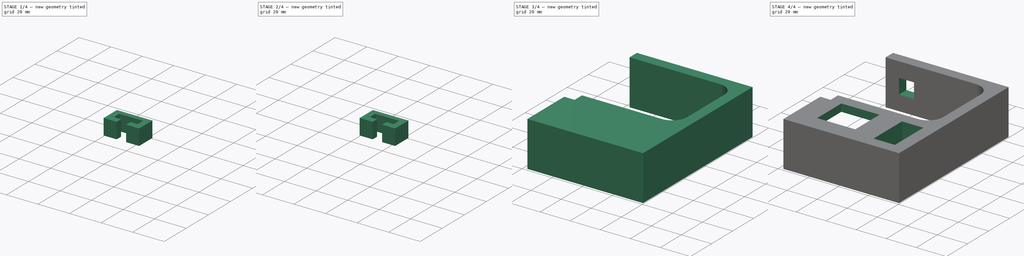
[diagram: build sequence overview — one tinted view per stage of 4, left to right]
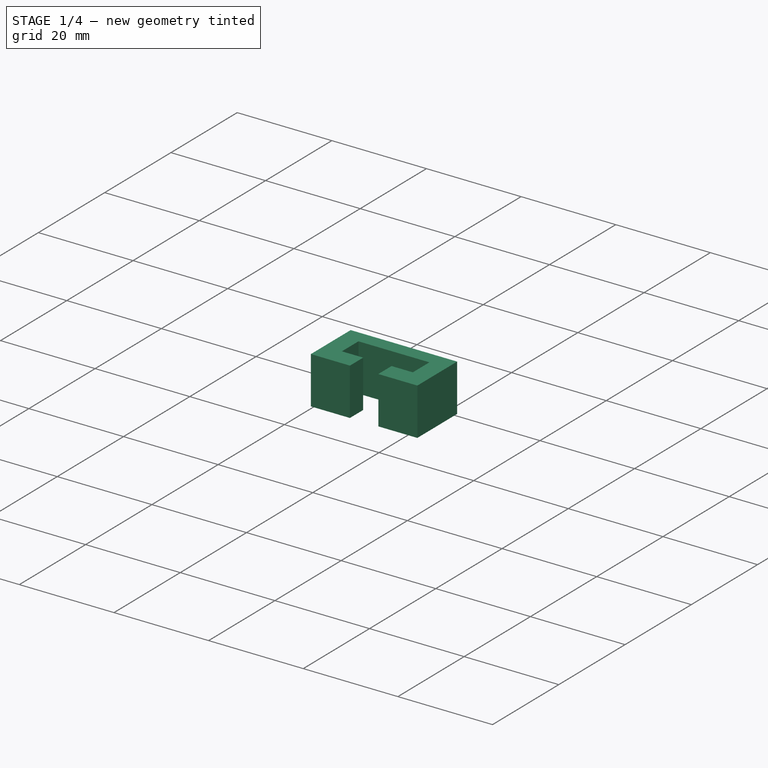
[diagram: stage 1 of 4 — iso view after this stage's code; geometry added in this stage tinted green]
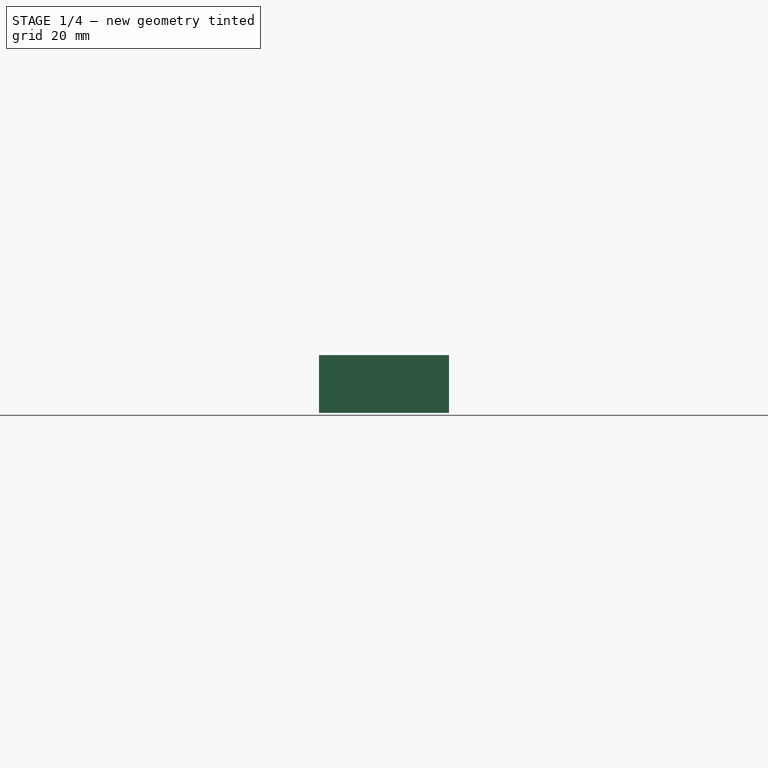
[diagram: stage 1 of 4 — front view after this stage's code; geometry added in this stage tinted green]
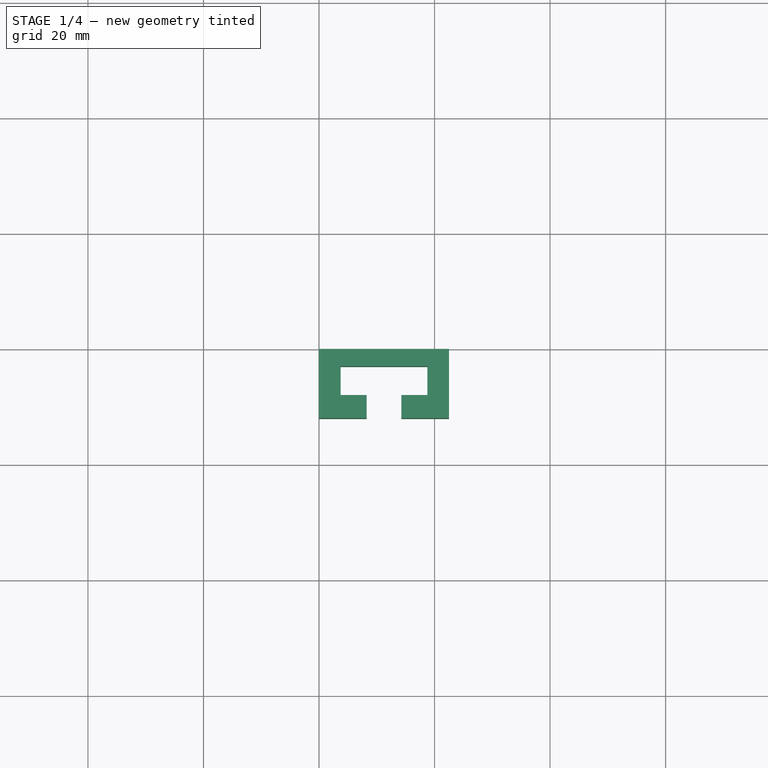
[diagram: stage 1 of 4 — top view after this stage's code; geometry added in this stage tinted green]
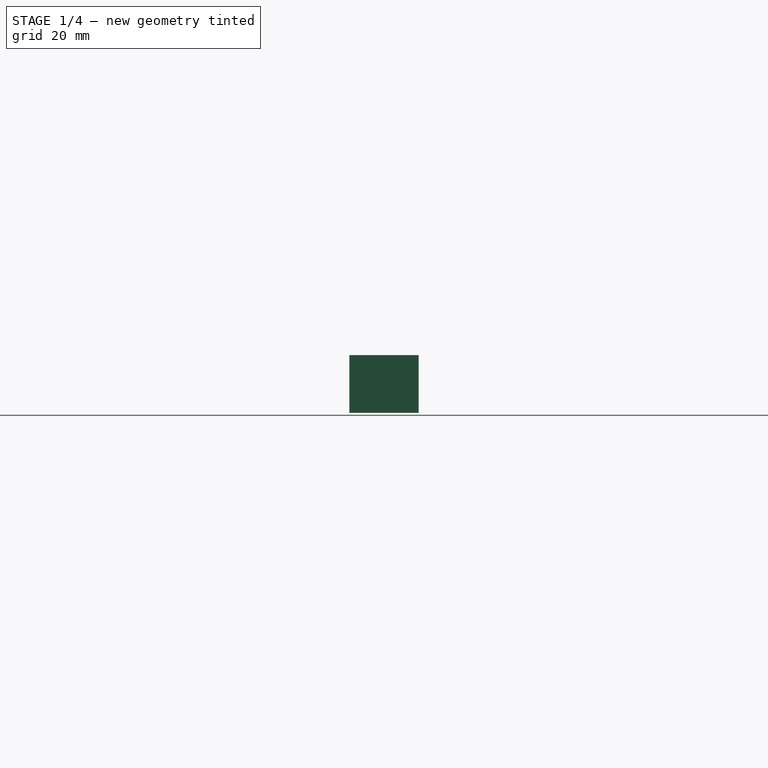
[diagram: stage 1 of 4 — right view after this stage's code; geometry added in this stage tinted green]
FCSTD DOCUMENT  (FreeCAD 0.20R29410 (Git))
Label: hip-female(With Connectors)
License: All rights reserved
LicenseURL: http://en.wikipedia.org/wiki/All_rights_reserved
objects: Sketcher::SketchObject×12, PartDesign::Pad×8, PartDesign::Body×8, PartDesign::Pocket×4
note: 44 computed .brp shape members not serialized (recipe doc carries the construction recipe); baked Part::Feature solids carry a one-line shape summary decoded from their .brp

FEATURE [PartDesign::Body] Body004  label="Female6"
  Group = -> [Sketch008,Pad004]
  Origin = -> Origin004
  Placement = pos=(41.9,-21.5,20) rot=(0,0,1;1.5708rad)
  Tip = -> Pad004
FEATURE [Sketcher::SketchObject] Sketch009
  FullyConstrained = true
  MapMode = 5
  Support = -> [XY_Plane005]
  sketch-geometry (12):
    g0: LineSegment StartX=0 StartY=0 StartZ=0 EndX=22.5 EndY=0 EndZ=0
    g1: LineSegment StartX=22.5 StartY=0 StartZ=0 EndX=22.5 EndY=-12 EndZ=0
    g2: LineSegment StartX=22.5 StartY=-12 StartZ=0 EndX=14.25 EndY=-12 EndZ=0
    g3: LineSegment StartX=14.25 StartY=-12 StartZ=0 EndX=14.25 EndY=-8 EndZ=0
    g4: LineSegment StartX=14.25 StartY=-8 StartZ=0 EndX=18.75 EndY=-8 EndZ=0
    g5: LineSegment StartX=18.75 StartY=-8 StartZ=0 EndX=18.75 EndY=-3 EndZ=0
    g6: LineSegment StartX=18.75 StartY=-3 StartZ=0 EndX=3.75 EndY=-3 EndZ=0
    g7: LineSegment StartX=3.75 StartY=-3 StartZ=0 EndX=3.75 EndY=-8 EndZ=0
    g8: LineSegment StartX=3.75 StartY=-8 StartZ=0 EndX=8.25 EndY=-8 EndZ=0
    g9: LineSegment StartX=8.25 StartY=-8 StartZ=0 EndX=8.25 EndY=-12 EndZ=0
    g10: LineSegment StartX=8.25 StartY=-12 StartZ=0 EndX=0 EndY=-12 EndZ=0
    g11: LineSegment StartX=0 StartY=-12 StartZ=0 EndX=0 EndY=0 EndZ=0
  constraints (35):
    c: Horizontal(g0)
    c: Coincident(g0,g1)
    c: Vertical(g1)
    c: Coincident(g1,g2)
    c: Horizontal(g2)
    c: Coincident(g2,g3)
    c: Vertical(g3)
    c: Coincident(g3,g4)
    c: Horizontal(g4)
    c: Coincident(g4,g5)
    c: Vertical(g5)
    c: Coincident(g5,g6)
    c: Horizontal(g6)
    c: Coincident(g6,g7)
    c: Vertical(g7)
    c: Coincident(g7,g8)
    c: Horizontal(g8)
    c: Coincident(g8,g9)
    c: Vertical(g9)
    c: Coincident(g9,g10)
    c: Horizontal(g10)
    c: Coincident(g10,g11)
    c: Coincident(g11,g0)
    c: Vertical(g11)
    c: DistanceX(g0,g0) = 22.5
    c: Equal(g11,g1)
    c: DistanceX(g6,g6) = 15
    c: DistanceY(g9,g9) = 4
    c: Equal(g3,g9)
    c: Equal(g4,g8)
    c: Equal(g2,g10)
    c: Coincident(g0,g-1)
    c: DistanceY(g5,g0) = 3
    c: DistanceY(g5,g5) = 5
    c: DistanceX(g9,g2) = 6
FEATURE [PartDesign::Pad] Pad005
  Direction = (0,0,1)
  Length = 10
  Length2 = 10
  Profile = -> Sketch009
  ReferenceAxis = -> Sketch009 [N_Axis]
  Type = 0
FEATURE [PartDesign::Body] Body005  label="Female2"
  Group = -> [Sketch009,Pad005]
  Origin = -> Origin005
  Placement = pos=(11.15,-62,20) rot=(0,0,1;0rad)
  Tip = -> Pad005
FEATURE [Sketcher::SketchObject] Sketch010
  FullyConstrained = true
  MapMode = 5
  Support = -> [XY_Plane006]
  sketch-geometry (12):
    g0: LineSegment StartX=0 StartY=0 StartZ=0 EndX=22.5 EndY=0 EndZ=0
    g1: LineSegment StartX=22.5 StartY=0 StartZ=0 EndX=22.5 EndY=-12 EndZ=0
    g2: LineSegment StartX=22.5 StartY=-12 StartZ=0 EndX=14.25 EndY=-12 EndZ=0
    g3: LineSegment StartX=14.25 StartY=-12 StartZ=0 EndX=14.25 EndY=-8 EndZ=0
    g4: LineSegment StartX=14.25 StartY=-8 StartZ=0 EndX=18.75 EndY=-8 EndZ=0
    g5: LineSegment StartX=18.75 StartY=-8 StartZ=0 EndX=18.75 EndY=-3 EndZ=0
    g6: LineSegment StartX=18.75 StartY=-3 StartZ=0 EndX=3.75 EndY=-3 EndZ=0
    g7: LineSegment StartX=3.75 StartY=-3 StartZ=0 EndX=3.75 EndY=-8 EndZ=0
    g8: LineSegment StartX=3.75 StartY=-8 StartZ=0 EndX=8.25 EndY=-8 EndZ=0
    g9: LineSegment StartX=8.25 StartY=-8 StartZ=0 EndX=8.25 EndY=-12 EndZ=0
    g10: LineSegment StartX=8.25 StartY=-12 StartZ=0 EndX=0 EndY=-12 EndZ=0
    g11: LineSegment StartX=0 StartY=-12 StartZ=0 EndX=0 EndY=0 EndZ=0
  constraints (35):
    c: Horizontal(g0)
    c: Coincident(g0,g1)
    c: Vertical(g1)
    c: Coincident(g1,g2)
    c: Horizontal(g2)
    c: Coincident(g2,g3)
    c: Vertical(g3)
    c: Coincident(g3,g4)
    c: Horizontal(g4)
    c: Coincident(g4,g5)
    c: Vertical(g5)
    c: Coincident(g5,g6)
    c: Horizontal(g6)
    c: Coincident(g6,g7)
    c: Vertical(g7)
    c: Coincident(g7,g8)
    c: Horizontal(g8)
    c: Coincident(g8,g9)
    c: Vertical(g9)
    c: Coincident(g9,g10)
    c: Horizontal(g10)
    c: Coincident(g10,g11)
    c: Coincident(g11,g0)
    c: Vertical(g11)
    c: DistanceX(g0,g0) = 22.5
    c: Equal(g11,g1)
    c: DistanceX(g6,g6) = 15
    c: DistanceY(g9,g9) = 4
    c: Equal(g3,g9)
    c: Equal(g4,g8)
    c: Equal(g2,g10)
    c: Coincident(g0,g-1)
    c: DistanceY(g5,g0) = 3
    c: DistanceY(g5,g5) = 5
    c: DistanceX(g9,g2) = 6
FEATURE [PartDesign::Pad] Pad006
  Direction = (0,0,1)
  Length = 10
  Length2 = 10
  Profile = -> Sketch010
  ReferenceAxis = -> Sketch010 [N_Axis]
  Type = 0
FEATURE [PartDesign::Body] Body006  label="Female3"
  Group = -> [Sketch010,Pad006]
  Origin = -> Origin006
  Placement = pos=(4.9,42.02,20) rot=(0,0,1;3.14159rad)
  Tip = -> Pad006
FEATURE [Sketcher::SketchObject] Sketch011
  FullyConstrained = true
  MapMode = 5
  Support = -> [XY_Plane007]
  sketch-geometry (12):
    g0: LineSegment StartX=0 StartY=0 StartZ=0 EndX=22.5 EndY=0 EndZ=0
    g1: LineSegment StartX=22.5 StartY=0 StartZ=0 EndX=22.5 EndY=-12 EndZ=0
    g2: LineSegment StartX=22.5 StartY=-12 StartZ=0 EndX=14.25 EndY=-12 EndZ=0
    g3: LineSegment StartX=14.25 StartY=-12 StartZ=0 EndX=14.25 EndY=-8 EndZ=0
    g4: LineSegment StartX=14.25 StartY=-8 StartZ=0 EndX=18.75 EndY=-8 EndZ=0
    g5: LineSegment StartX=18.75 StartY=-8 StartZ=0 EndX=18.75 EndY=-3 EndZ=0
    g6: LineSegment StartX=18.75 StartY=-3 StartZ=0 EndX=3.75 EndY=-3 EndZ=0
    g7: LineSegment StartX=3.75 StartY=-3 StartZ=0 EndX=3.75 EndY=-8 EndZ=0
    g8: LineSegment StartX=3.75 StartY=-8 StartZ=0 EndX=8.25 EndY=-8 EndZ=0
    g9: LineSegment StartX=8.25 StartY=-8 StartZ=0 EndX=8.25 EndY=-12 EndZ=0
    g10: LineSegment StartX=8.25 StartY=-12 StartZ=0 EndX=0 EndY=-12 EndZ=0
    g11: LineSegment StartX=0 StartY=-12 StartZ=0 EndX=0 EndY=0 EndZ=0
  constraints (35):
    c: Horizontal(g0)
    c: Coincident(g0,g1)
    c: Vertical(g1)
    c: Coincident(g1,g2)
    c: Horizontal(g2)
    c: Coincident(g2,g3)
    c: Vertical(g3)
    c: Coincident(g3,g4)
    c: Horizontal(g4)
    c: Coincident(g4,g5)
    c: Vertical(g5)
    c: Coincident(g5,g6)
    c: Horizontal(g6)
    c: Coincident(g6,g7)
    c: Vertical(g7)
    c: Coincident(g7,g8)
    c: Horizontal(g8)
    c: Coincident(g8,g9)
    c: Vertical(g9)
    c: Coincident(g9,g10)
    c: Horizontal(g10)
    c: Coincident(g10,g11)
    c: Coincident(g11,g0)
    c: Vertical(g11)
    c: DistanceX(g0,g0) = 22.5
    c: Equal(g11,g1)
    c: DistanceX(g6,g6) = 15
    c: DistanceY(g9,g9) = 4
    c: Equal(g3,g9)
    c: Equal(g4,g8)
    c: Equal(g2,g10)
    c: Coincident(g0,g-1)
    c: DistanceY(g5,g0) = 3
    c: DistanceY(g5,g5) = 5
    c: DistanceX(g9,g2) = 6
FEATURE [PartDesign::Pad] Pad007
  Direction = (0,0,1)
  Length = 10
  Length2 = 10
  Profile = -> Sketch011
  ReferenceAxis = -> Sketch011 [N_Axis]
  Type = 0
FEATURE [PartDesign::Body] Body007  label="Female4"
  Group = -> [Sketch011,Pad007]
  Origin = -> Origin007
  Placement = pos=(34.15,42.02,20) rot=(0,0,1;3.14159rad)
  Tip = -> Pad007
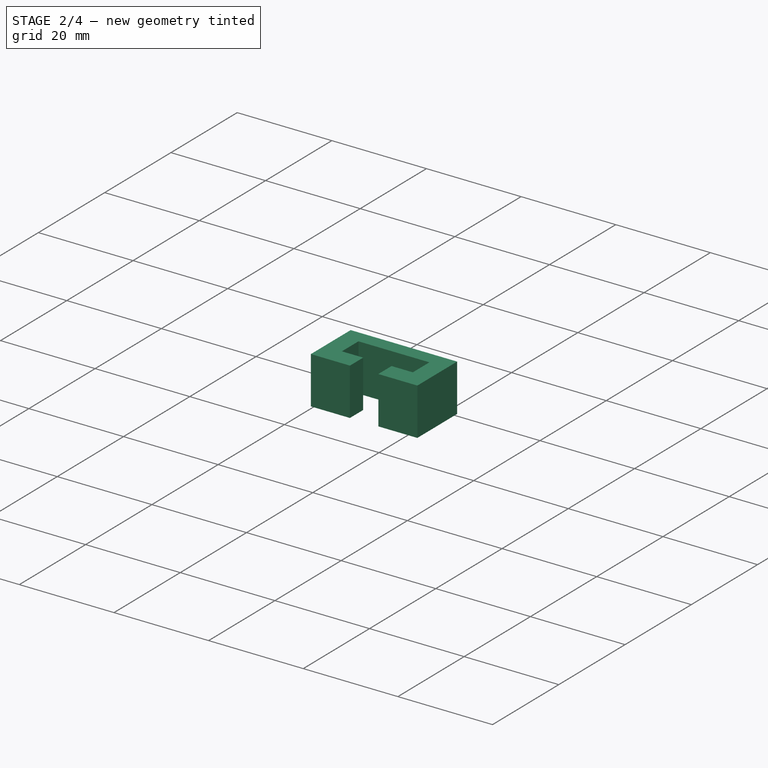
[diagram: stage 2 of 4 — iso view after this stage's code; geometry added in this stage tinted green]
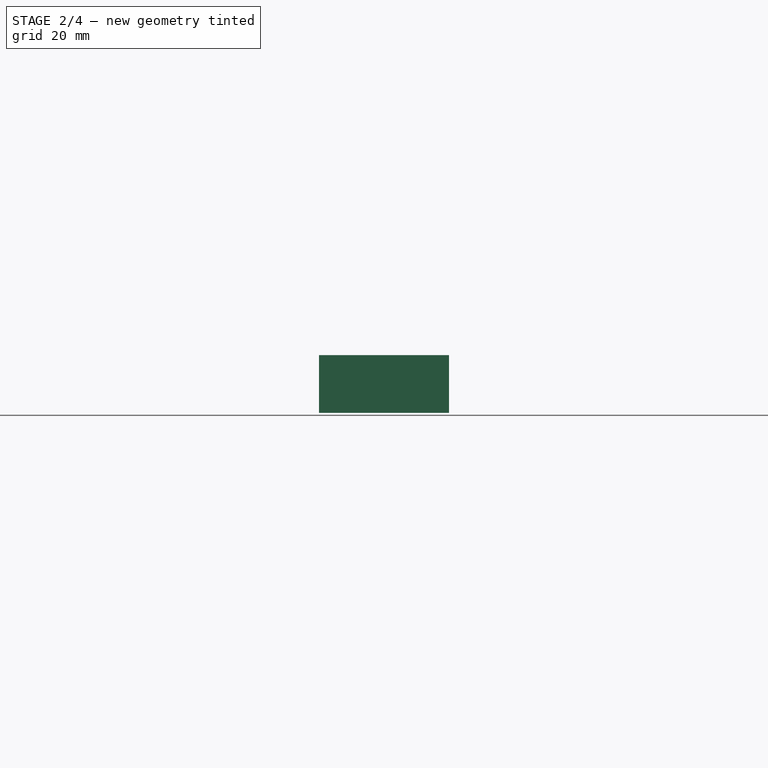
[diagram: stage 2 of 4 — front view after this stage's code; geometry added in this stage tinted green]
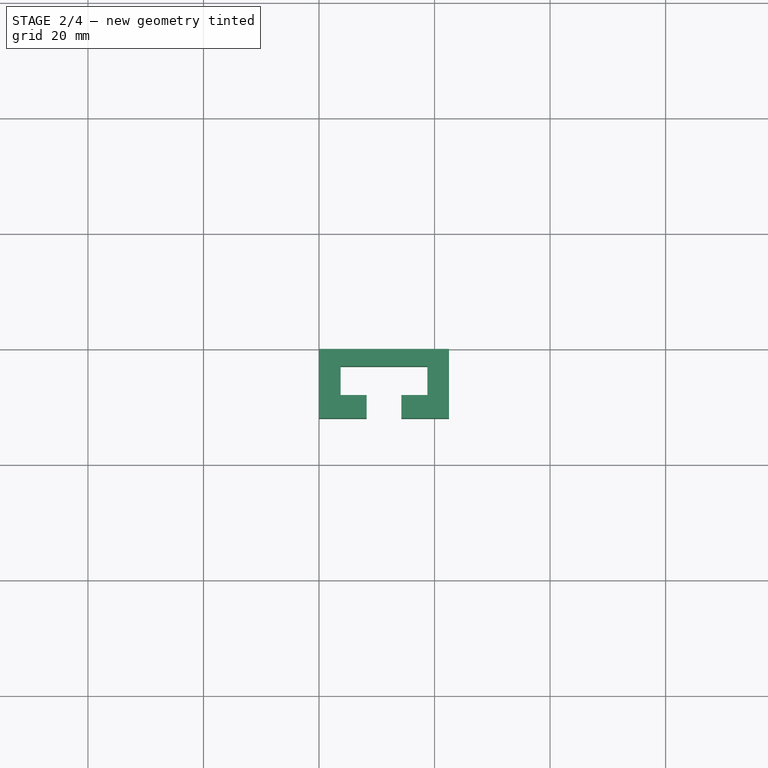
[diagram: stage 2 of 4 — top view after this stage's code; geometry added in this stage tinted green]
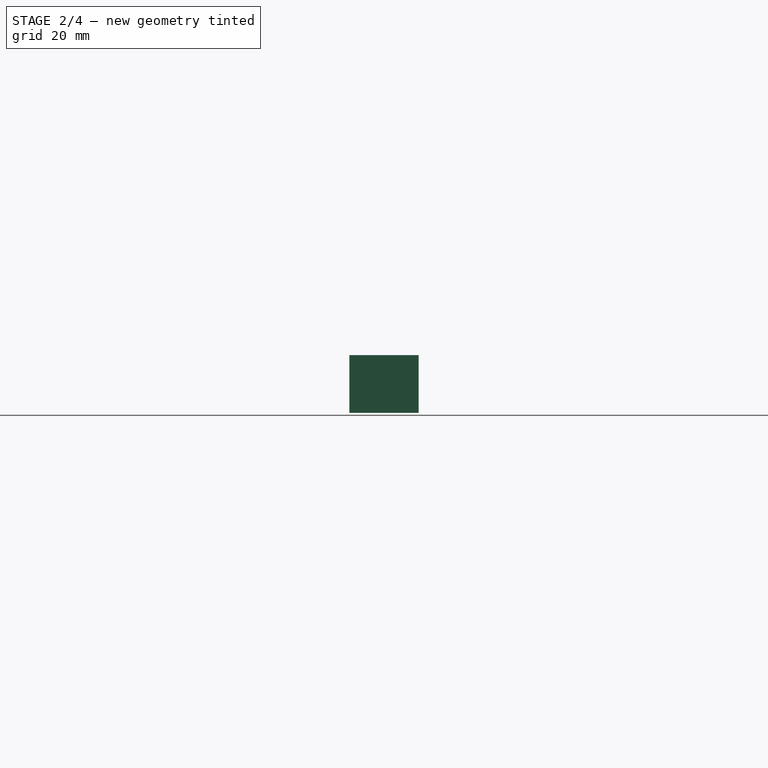
[diagram: stage 2 of 4 — right view after this stage's code; geometry added in this stage tinted green]
FEATURE [PartDesign::Body] Body001  label="Female7"
  Group = -> [Sketch005,Pad001]
  Origin = -> Origin001
  Placement = pos=(41.9,8.5,20) rot=(0,0,1;1.5708rad)
  Tip = -> Pad001
FEATURE [Sketcher::SketchObject] Sketch006
  FullyConstrained = true
  MapMode = 5
  Support = -> [XY_Plane002]
  sketch-geometry (12):
    g0: LineSegment StartX=0 StartY=0 StartZ=0 EndX=22.5 EndY=0 EndZ=0
    g1: LineSegment StartX=22.5 StartY=0 StartZ=0 EndX=22.5 EndY=-12 EndZ=0
    g2: LineSegment StartX=22.5 StartY=-12 StartZ=0 EndX=14.25 EndY=-12 EndZ=0
    g3: LineSegment StartX=14.25 StartY=-12 StartZ=0 EndX=14.25 EndY=-8 EndZ=0
    g4: LineSegment StartX=14.25 StartY=-8 StartZ=0 EndX=18.75 EndY=-8 EndZ=0
    g5: LineSegment StartX=18.75 StartY=-8 StartZ=0 EndX=18.75 EndY=-3 EndZ=0
    g6: LineSegment StartX=18.75 StartY=-3 StartZ=0 EndX=3.75 EndY=-3 EndZ=0
    g7: LineSegment StartX=3.75 StartY=-3 StartZ=0 EndX=3.75 EndY=-8 EndZ=0
    g8: LineSegment StartX=3.75 StartY=-8 StartZ=0 EndX=8.25 EndY=-8 EndZ=0
    g9: LineSegment StartX=8.25 StartY=-8 StartZ=0 EndX=8.25 EndY=-12 EndZ=0
    g10: LineSegment StartX=8.25 StartY=-12 StartZ=0 EndX=0 EndY=-12 EndZ=0
    g11: LineSegment StartX=0 StartY=-12 StartZ=0 EndX=0 EndY=0 EndZ=0
  constraints (35):
    c: Horizontal(g0)
    c: Coincident(g0,g1)
    c: Vertical(g1)
    c: Coincident(g1,g2)
    c: Horizontal(g2)
    c: Coincident(g2,g3)
    c: Vertical(g3)
    c: Coincident(g3,g4)
    c: Horizontal(g4)
    c: Coincident(g4,g5)
    c: Vertical(g5)
    c: Coincident(g5,g6)
    c: Horizontal(g6)
    c: Coincident(g6,g7)
    c: Vertical(g7)
    c: Coincident(g7,g8)
    c: Horizontal(g8)
    c: Coincident(g8,g9)
    c: Vertical(g9)
    c: Coincident(g9,g10)
    c: Horizontal(g10)
    c: Coincident(g10,g11)
    c: Coincident(g11,g0)
    c: Vertical(g11)
    c: DistanceX(g0,g0) = 22.5
    c: Equal(g11,g1)
    c: DistanceX(g6,g6) = 15
    c: DistanceY(g9,g9) = 4
    c: Equal(g3,g9)
    c: Equal(g4,g8)
    c: Equal(g2,g10)
    c: Coincident(g0,g-1)
    c: DistanceY(g5,g0) = 3
    c: DistanceY(g5,g5) = 5
    c: DistanceX(g9,g2) = 6
FEATURE [PartDesign::Pad] Pad002
  Direction = (0,0,1)
  Length = 10
  Length2 = 10
  Profile = -> Sketch006
  ReferenceAxis = -> Sketch006 [N_Axis]
  Type = 0
FEATURE [PartDesign::Body] Body002  label="Female1"
  Group = -> [Sketch006,Pad002]
  Origin = -> Origin002
  Placement = pos=(-18.1,-62,20) rot=(0,0,1;0rad)
  Tip = -> Pad002
FEATURE [Sketcher::SketchObject] Sketch007
  FullyConstrained = true
  MapMode = 5
  Support = -> [XY_Plane003]
  sketch-geometry (12):
    g0: LineSegment StartX=0 StartY=0 StartZ=0 EndX=22.5 EndY=0 EndZ=0
    g1: LineSegment StartX=22.5 StartY=0 StartZ=0 EndX=22.5 EndY=-12 EndZ=0
    g2: LineSegment StartX=22.5 StartY=-12 StartZ=0 EndX=14.25 EndY=-12 EndZ=0
    g3: LineSegment StartX=14.25 StartY=-12 StartZ=0 EndX=14.25 EndY=-8 EndZ=0
    g4: LineSegment StartX=14.25 StartY=-8 StartZ=0 EndX=18.75 EndY=-8 EndZ=0
    g5: LineSegment StartX=18.75 StartY=-8 StartZ=0 EndX=18.75 EndY=-3 EndZ=0
    g6: LineSegment StartX=18.75 StartY=-3 StartZ=0 EndX=3.75 EndY=-3 EndZ=0
    g7: LineSegment StartX=3.75 StartY=-3 StartZ=0 EndX=3.75 EndY=-8 EndZ=0
    g8: LineSegment StartX=3.75 StartY=-8 StartZ=0 EndX=8.25 EndY=-8 EndZ=0
    g9: LineSegment StartX=8.25 StartY=-8 StartZ=0 EndX=8.25 EndY=-12 EndZ=0
    g10: LineSegment StartX=8.25 StartY=-12 StartZ=0 EndX=0 EndY=-12 EndZ=0
    g11: LineSegment StartX=0 StartY=-12 StartZ=0 EndX=0 EndY=0 EndZ=0
  constraints (35):
    c: Horizontal(g0)
    c: Coincident(g0,g1)
    c: Vertical(g1)
    c: Coincident(g1,g2)
    c: Horizontal(g2)
    c: Coincident(g2,g3)
    c: Vertical(g3)
    c: Coincident(g3,g4)
    c: Horizontal(g4)
    c: Coincident(g4,g5)
    c: Vertical(g5)
    c: Coincident(g5,g6)
    c: Horizontal(g6)
    c: Coincident(g6,g7)
    c: Vertical(g7)
    c: Coincident(g7,g8)
    c: Horizontal(g8)
    c: Coincident(g8,g9)
    c: Vertical(g9)
    c: Coincident(g9,g10)
    c: Horizontal(g10)
    c: Coincident(g10,g11)
    c: Coincident(g11,g0)
    c: Vertical(g11)
    c: DistanceX(g0,g0) = 22.5
    c: Equal(g11,g1)
    c: DistanceX(g6,g6) = 15
    c: DistanceY(g9,g9) = 4
    c: Equal(g3,g9)
    c: Equal(g4,g8)
    c: Equal(g2,g10)
    c: Coincident(g0,g-1)
    c: DistanceY(g5,g0) = 3
    c: DistanceY(g5,g5) = 5
    c: DistanceX(g9,g2) = 6
FEATURE [PartDesign::Pad] Pad003
  Direction = (0,0,1)
  Length = 10
  Length2 = 10
  Profile = -> Sketch007
  ReferenceAxis = -> Sketch007 [N_Axis]
  Type = 0
FEATURE [PartDesign::Body] Body003  label="Female5"
  Group = -> [Sketch007,Pad003]
  Origin = -> Origin003
  Placement = pos=(41.9,-51.5,20) rot=(0,0,1;1.5708rad)
  Tip = -> Pad003
FEATURE [Sketcher::SketchObject] Sketch008
  FullyConstrained = true
  MapMode = 5
  Support = -> [XY_Plane004]
  sketch-geometry (12):
    g0: LineSegment StartX=0 StartY=0 StartZ=0 EndX=22.5 EndY=0 EndZ=0
    g1: LineSegment StartX=22.5 StartY=0 StartZ=0 EndX=22.5 EndY=-12 EndZ=0
    g2: LineSegment StartX=22.5 StartY=-12 StartZ=0 EndX=14.25 EndY=-12 EndZ=0
    g3: LineSegment StartX=14.25 StartY=-12 StartZ=0 EndX=14.25 EndY=-8 EndZ=0
    g4: LineSegment StartX=14.25 StartY=-8 StartZ=0 EndX=18.75 EndY=-8 EndZ=0
    g5: LineSegment StartX=18.75 StartY=-8 StartZ=0 EndX=18.75 EndY=-3 EndZ=0
    g6: LineSegment StartX=18.75 StartY=-3 StartZ=0 EndX=3.75 EndY=-3 EndZ=0
    g7: LineSegment StartX=3.75 StartY=-3 StartZ=0 EndX=3.75 EndY=-8 EndZ=0
    g8: LineSegment StartX=3.75 StartY=-8 StartZ=0 EndX=8.25 EndY=-8 EndZ=0
    g9: LineSegment StartX=8.25 StartY=-8 StartZ=0 EndX=8.25 EndY=-12 EndZ=0
    g10: LineSegment StartX=8.25 StartY=-12 StartZ=0 EndX=0 EndY=-12 EndZ=0
    g11: LineSegment StartX=0 StartY=-12 StartZ=0 EndX=0 EndY=0 EndZ=0
  constraints (35):
    c: Horizontal(g0)
    c: Coincident(g0,g1)
    c: Vertical(g1)
    c: Coincident(g1,g2)
    c: Horizontal(g2)
    c: Coincident(g2,g3)
    c: Vertical(g3)
    c: Coincident(g3,g4)
    c: Horizontal(g4)
    c: Coincident(g4,g5)
    c: Vertical(g5)
    c: Coincident(g5,g6)
    c: Horizontal(g6)
    c: Coincident(g6,g7)
    c: Vertical(g7)
    c: Coincident(g7,g8)
    c: Horizontal(g8)
    c: Coincident(g8,g9)
    c: Vertical(g9)
    c: Coincident(g9,g10)
    c: Horizontal(g10)
    c: Coincident(g10,g11)
    c: Coincident(g11,g0)
    c: Vertical(g11)
    c: DistanceX(g0,g0) = 22.5
    c: Equal(g11,g1)
    c: DistanceX(g6,g6) = 15
    c: DistanceY(g9,g9) = 4
    c: Equal(g3,g9)
    c: Equal(g4,g8)
    c: Equal(g2,g10)
    c: Coincident(g0,g-1)
    c: DistanceY(g5,g0) = 3
    c: DistanceY(g5,g5) = 5
    c: DistanceX(g9,g2) = 6
FEATURE [PartDesign::Pad] Pad004
  Direction = (0,0,1)
  Length = 10
  Length2 = 10
  Profile = -> Sketch008
  ReferenceAxis = -> Sketch008 [N_Axis]
  Type = 0
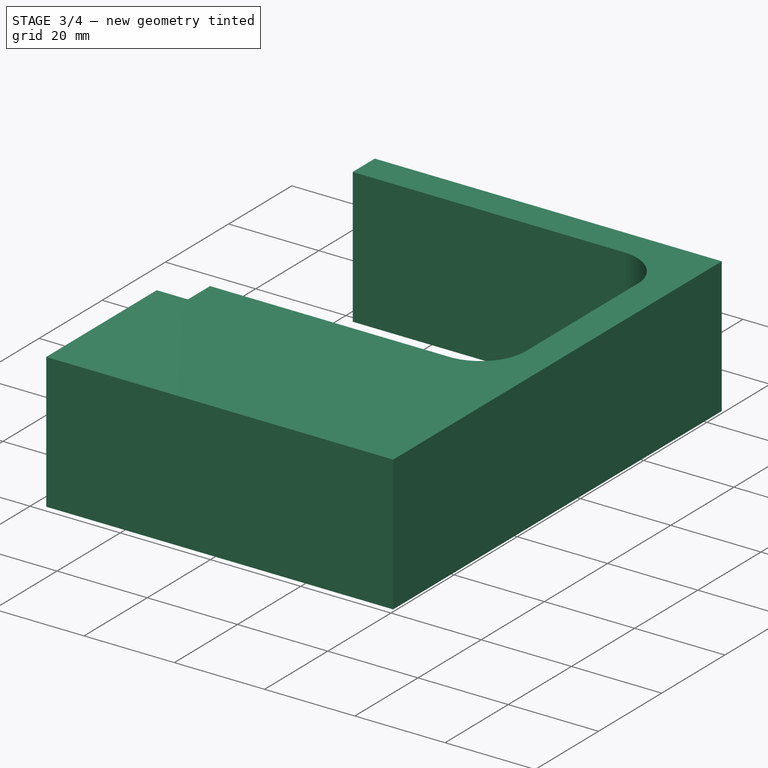
[diagram: stage 3 of 4 — iso view after this stage's code; geometry added in this stage tinted green]
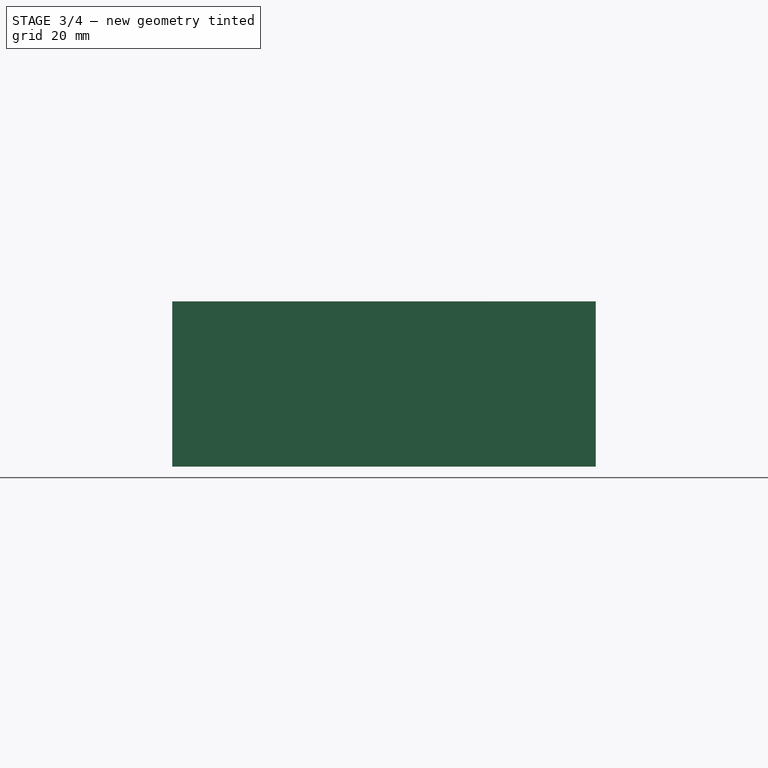
[diagram: stage 3 of 4 — front view after this stage's code; geometry added in this stage tinted green]
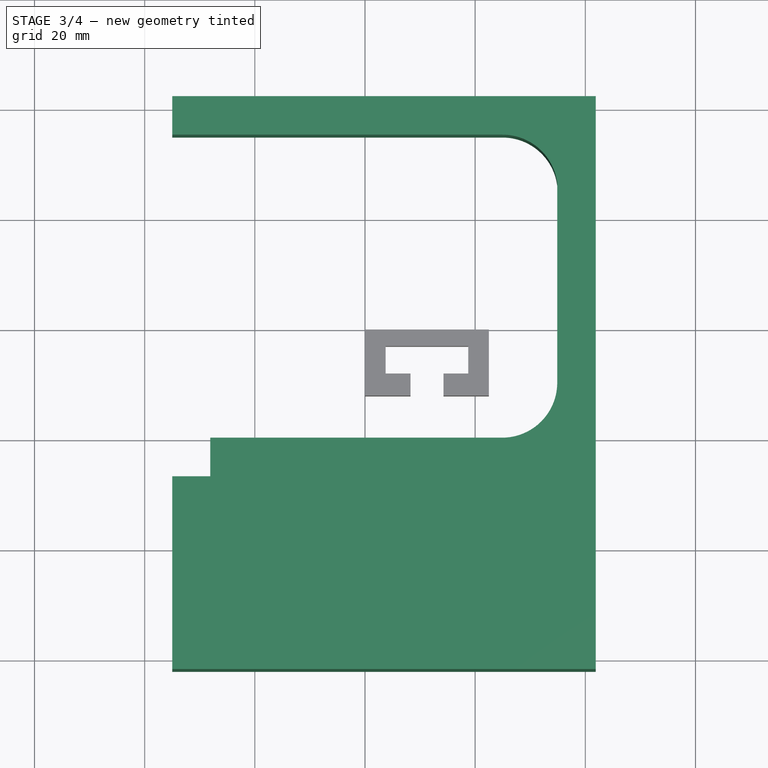
[diagram: stage 3 of 4 — top view after this stage's code; geometry added in this stage tinted green]
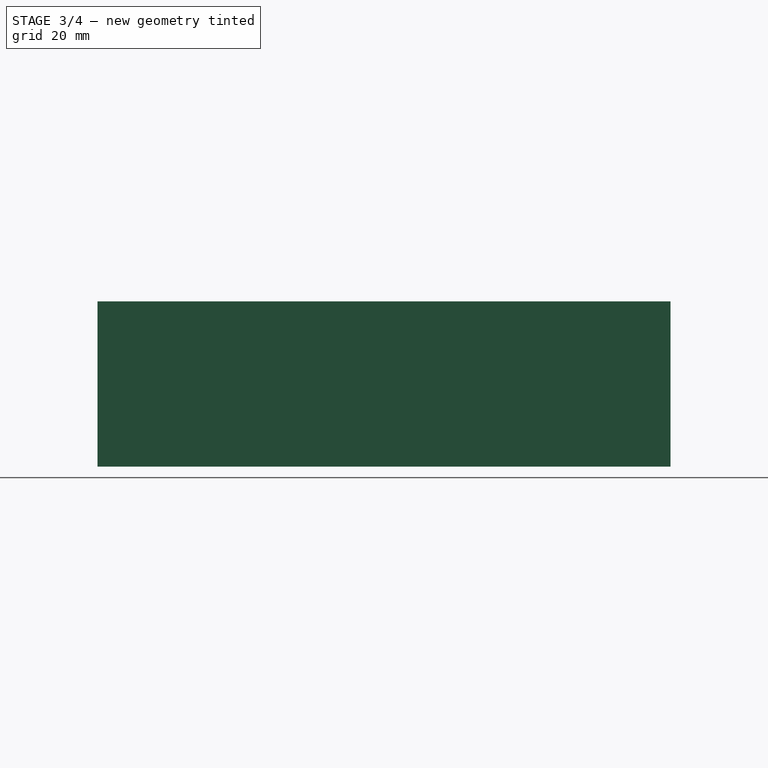
[diagram: stage 3 of 4 — right view after this stage's code; geometry added in this stage tinted green]
FEATURE [Sketcher::SketchObject] Sketch
  FullyConstrained = false
  MapMode = 5
  Support = -> [XY_Plane]
  sketch-geometry (13):
    g0: LineSegment StartX=-35 StartY=42.0154 StartZ=0 EndX=-35 EndY=35.0154 EndZ=0
    g1: LineSegment StartX=-35 StartY=-27 StartZ=0 EndX=-35 EndY=-62 EndZ=0
    g2: LineSegment StartX=-35 StartY=-62 StartZ=0 EndX=41.9 EndY=-62 EndZ=0
    g3: LineSegment StartX=41.9 StartY=-62 StartZ=0 EndX=41.9 EndY=42.0154 EndZ=0
    g4: LineSegment StartX=41.9 StartY=42.0154 StartZ=0 EndX=-35 EndY=42.0154 EndZ=0
    g5: GeomPoint X=-5.85326 Y=11.8127 Z=0
    g6: LineSegment StartX=-35 StartY=-27 StartZ=0 EndX=-28.1 EndY=-27 EndZ=0
    g7: LineSegment StartX=-28.1 StartY=-27 StartZ=0 EndX=-28.1 EndY=-20 EndZ=0
    g8: ArcOfCircle CenterX=24.9741 CenterY=25.0156 CenterZ=0 NormalX=0 NormalY=0 NormalZ=1 AngleXU=0 Radius=10 StartAngle=0.121853 EndAngle=1.57821
    g9: LineSegment StartX=-35 StartY=35.0154 StartZ=0 EndX=24.9 EndY=35.0154 EndZ=0
    g10: ArcOfCircle CenterX=24.9027 CenterY=-10 CenterZ=0 NormalX=0 NormalY=0 NormalZ=1 AngleXU=0 Radius=10 StartAngle=4.71212 EndAngle=6.3063
    g11: LineSegment StartX=34.9 StartY=-9.76885 StartZ=0 EndX=34.9 EndY=26.2312 EndZ=0
    g12: LineSegment StartX=24.9 StartY=-20 StartZ=0 EndX=-28.1 EndY=-20 EndZ=0
  constraints (35):
    c: Vertical(g0)
    c: Vertical(g1)
    c: Coincident(g1,g2)
    c: Horizontal(g2)
    c: Coincident(g2,g3)
    c: Vertical(g3)
    c: Coincident(g3,g4)
    c: Coincident(g4,g0)
    c: Horizontal(g4)
    c: DistanceX(g2,g2) = 76.9
    c: DistanceY(g1,g1) = 35
    c: DistanceY(g0,g0) = 7
    c: Coincident(g6,g1)
    c: Horizontal(g6)
    c: Coincident(g7,g6)
    c: Vertical(g7)
    c: DistanceY(g7,g7) = 7
    c: DistanceX(g6,g6) = 6.9
    c: DistanceX(g1,g-1) = 35
    c: Radius(g8) = 10
    c: DistanceX(g8,g8) = 10
    c: Coincident(g9,g0)
    c: Coincident(g9,g8)
    c: Horizontal(g9)
    c: Radius(g10) = 10
    c: DistanceX(g10,g10) = 10
    c: Coincident(g11,g10)
    c: Coincident(g11,g8)
    c: Coincident(g12,g10)
    c: Coincident(g12,g7)
    c: Horizontal(g12)
    c: Vertical(g11)
    c: DistanceY(g11,g11) = 36
    c: DistanceX(g12,g12) = 53
    c: DistanceY(g10,g-1) = 20
FEATURE [PartDesign::Pad] Pad  label="MainPad"
  Direction = (0,0,1)
  Length = 30
  Length2 = 10
  Profile = -> Sketch
  ReferenceAxis = -> Sketch [N_Axis]
  Type = 0
FEATURE [Sketcher::SketchObject] Sketch001
  AttachmentOffset = pos=(0,0,5) rot=(0,0,1;0rad)
  FullyConstrained = true
  MapMode = 5
  Placement = pos=(0,0,5) rot=(0,0,1;0rad)
  Support = -> [XY_Plane]
  sketch-geometry (8):
    g0: LineSegment StartX=-28.1 StartY=-20 StartZ=0 EndX=-28.1 EndY=-58.5 EndZ=0
    g1: LineSegment StartX=-28.1 StartY=-58.5 StartZ=0 EndX=12.2 EndY=-58.5 EndZ=0
    g2: LineSegment StartX=12.2 StartY=-58.5 StartZ=0 EndX=12.2 EndY=-20 EndZ=0
    g3: LineSegment StartX=12.2 StartY=-20 StartZ=0 EndX=-18.1 EndY=-20 EndZ=0
    g4: LineSegment StartX=-18.1 StartY=-20 StartZ=0 EndX=-18.1 EndY=-13.5 EndZ=0
    g5: LineSegment StartX=-18.1 StartY=-13.5 StartZ=0 EndX=-24.1 EndY=-13.5 EndZ=0
    g6: LineSegment StartX=-24.1 StartY=-13.5 StartZ=0 EndX=-24.1 EndY=-20 EndZ=0
    g7: LineSegment StartX=-28.1 StartY=-20 StartZ=0 EndX=-24.1 EndY=-20 EndZ=0
  constraints (24):
    c: Vertical(g0)
    c: Coincident(g1,g0)
    c: Horizontal(g1)
    c: Coincident(g1,g2)
    c: Vertical(g2)
    c: Coincident(g2,g3)
    c: Horizontal(g3)
    c: Coincident(g3,g4)
    c: Vertical(g4)
    c: Coincident(g4,g5)
    c: Horizontal(g5)
    c: Coincident(g5,g6)
    c: Vertical(g6)
    c: Coincident(g7,g0)
    c: Coincident(g7,g6)
    c: Horizontal(g7)
    c: DistanceY(g0,g0) = 38.5
    c: DistanceY(g6,g6) = 6.5
    c: DistanceY(g2,g2) = 38.5
    c: DistanceX(g1,g1) = 40.3
    c: DistanceX(g7,g7) = 4
    c: DistanceX(g5,g5) = 6
    c: DistanceY(g2,g-1) = 20
    c: DistanceX(g0,g-1) = 28.1
FEATURE [PartDesign::Pocket] Pocket  label="ServoPocket"
  BaseFeature = -> Pad
  Direction = (0,0,-1)
  Length = 20
  Length2 = 5
  Profile = -> Sketch001
  ReferenceAxis = -> Sketch001 [N_Axis]
  Reversed = true
  Type = 0
FEATURE [PartDesign::Body] Body
  Group = -> [Sketch,Pad,Sketch001,Pocket,Sketch002,Pocket001,Sketch003,Pocket002,Sketch004,Pocket003]
  Origin = -> Origin
  Tip = -> Pocket003
FEATURE [Sketcher::SketchObject] Sketch005
  FullyConstrained = true
  MapMode = 5
  Support = -> [XY_Plane001]
  sketch-geometry (12):
    g0: LineSegment StartX=0 StartY=0 StartZ=0 EndX=22.5 EndY=0 EndZ=0
    g1: LineSegment StartX=22.5 StartY=0 StartZ=0 EndX=22.5 EndY=-12 EndZ=0
    g2: LineSegment StartX=22.5 StartY=-12 StartZ=0 EndX=14.25 EndY=-12 EndZ=0
    g3: LineSegment StartX=14.25 StartY=-12 StartZ=0 EndX=14.25 EndY=-8 EndZ=0
    g4: LineSegment StartX=14.25 StartY=-8 StartZ=0 EndX=18.75 EndY=-8 EndZ=0
    g5: LineSegment StartX=18.75 StartY=-8 StartZ=0 EndX=18.75 EndY=-3 EndZ=0
    g6: LineSegment StartX=18.75 StartY=-3 StartZ=0 EndX=3.75 EndY=-3 EndZ=0
    g7: LineSegment StartX=3.75 StartY=-3 StartZ=0 EndX=3.75 EndY=-8 EndZ=0
    g8: LineSegment StartX=3.75 StartY=-8 StartZ=0 EndX=8.25 EndY=-8 EndZ=0
    g9: LineSegment StartX=8.25 StartY=-8 StartZ=0 EndX=8.25 EndY=-12 EndZ=0
    g10: LineSegment StartX=8.25 StartY=-12 StartZ=0 EndX=0 EndY=-12 EndZ=0
    g11: LineSegment StartX=0 StartY=-12 StartZ=0 EndX=0 EndY=0 EndZ=0
  constraints (35):
    c: Horizontal(g0)
    c: Coincident(g0,g1)
    c: Vertical(g1)
    c: Coincident(g1,g2)
    c: Horizontal(g2)
    c: Coincident(g2,g3)
    c: Vertical(g3)
    c: Coincident(g3,g4)
    c: Horizontal(g4)
    c: Coincident(g4,g5)
    c: Vertical(g5)
    c: Coincident(g5,g6)
    c: Horizontal(g6)
    c: Coincident(g6,g7)
    c: Vertical(g7)
    c: Coincident(g7,g8)
    c: Horizontal(g8)
    c: Coincident(g8,g9)
    c: Vertical(g9)
    c: Coincident(g9,g10)
    c: Horizontal(g10)
    c: Coincident(g10,g11)
    c: Coincident(g11,g0)
    c: Vertical(g11)
    c: DistanceX(g0,g0) = 22.5
    c: Equal(g11,g1)
    c: DistanceX(g6,g6) = 15
    c: DistanceY(g9,g9) = 4
    c: Equal(g3,g9)
    c: Equal(g4,g8)
    c: Equal(g2,g10)
    c: Coincident(g0,g-1)
    c: DistanceY(g5,g0) = 3
    c: DistanceY(g5,g5) = 5
    c: DistanceX(g9,g2) = 6
FEATURE [PartDesign::Pad] Pad001
  Direction = (0,0,1)
  Length = 10
  Length2 = 10
  Profile = -> Sketch005
  ReferenceAxis = -> Sketch005 [N_Axis]
  Type = 0
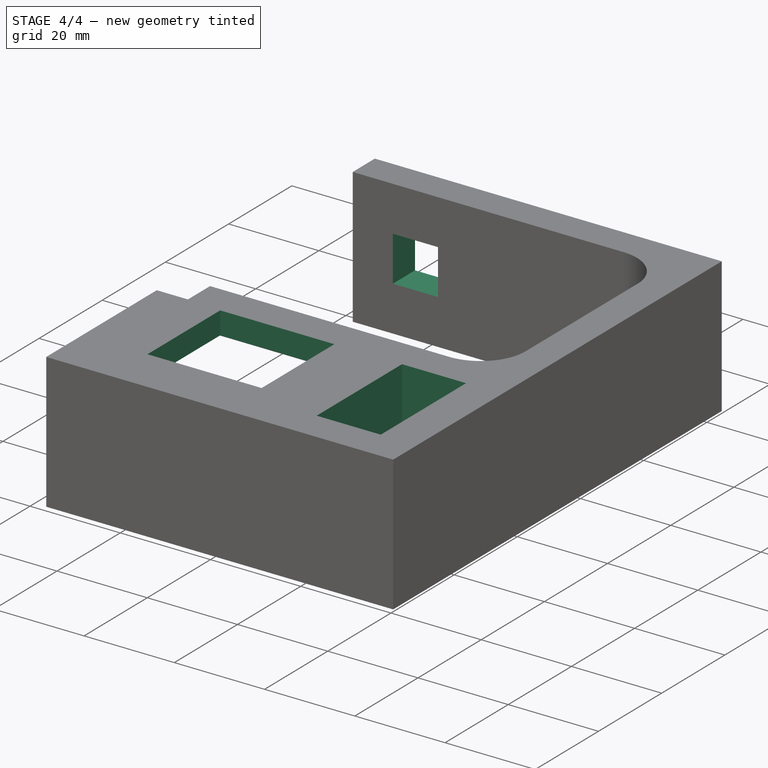
[diagram: stage 4 of 4 — iso view after this stage's code; geometry added in this stage tinted green]
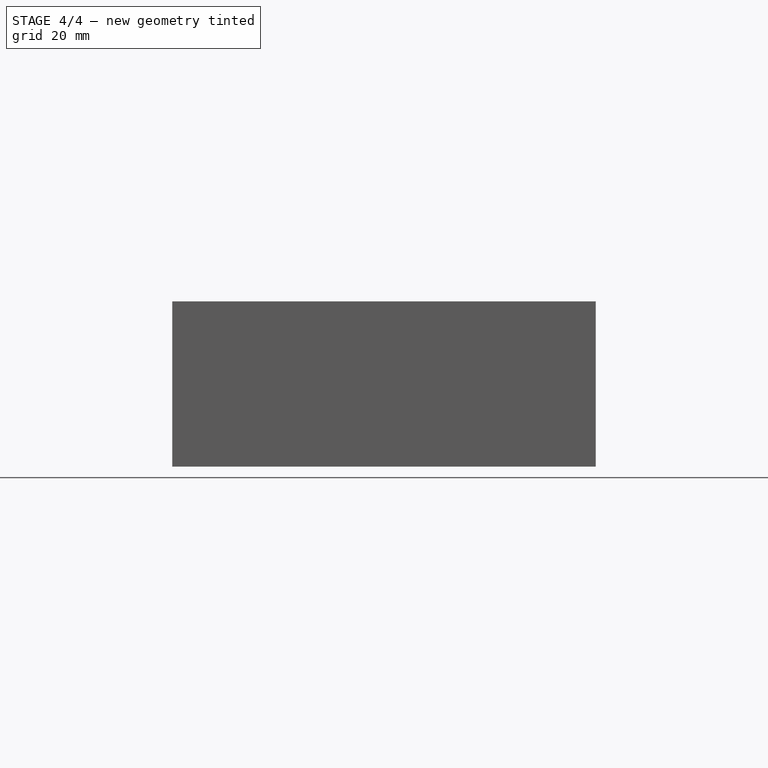
[diagram: stage 4 of 4 — front view after this stage's code; geometry added in this stage tinted green]
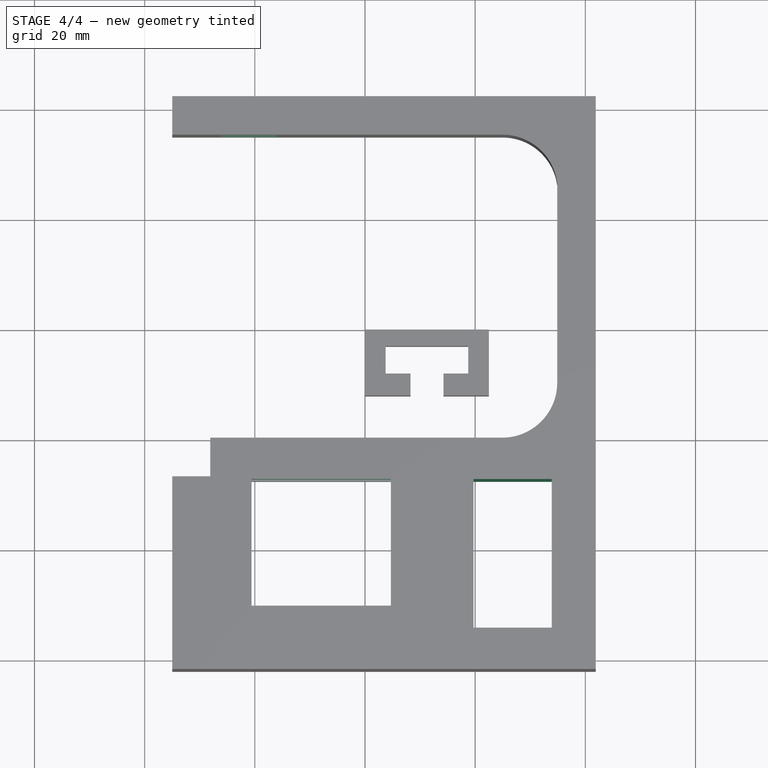
[diagram: stage 4 of 4 — top view after this stage's code; geometry added in this stage tinted green]
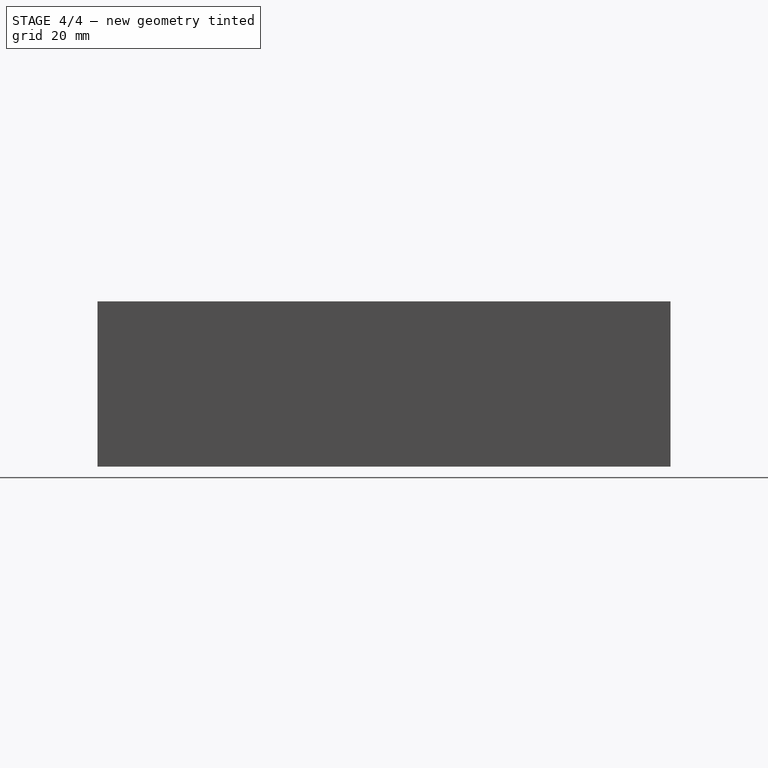
[diagram: stage 4 of 4 — right view after this stage's code; geometry added in this stage tinted green]
FEATURE [Sketcher::SketchObject] Sketch002
  AttachmentOffset = pos=(0,0,-35) rot=(0,0,1;0rad)
  FullyConstrained = false
  MapMode = 5
  Placement = pos=(-35,7.8e-15,-7.8e-15) rot=(0.57735,0.57735,0.57735;2.0944rad)
  Support = -> [YZ_Plane]
  sketch-geometry (6):
    g0: LineSegment StartX=-27 StartY=25.1051 StartZ=0 EndX=-27 EndY=15.1051 EndZ=0
    g1: LineSegment StartX=-27 StartY=15.1051 StartZ=0 EndX=-37 EndY=15.1051 EndZ=0
    g2: LineSegment StartX=-37 StartY=15.1051 StartZ=0 EndX=-47 EndY=5 EndZ=0
    g3: LineSegment StartX=-47 StartY=5 StartZ=0 EndX=-57 EndY=5 EndZ=0
    g4: LineSegment StartX=-57 StartY=5 StartZ=0 EndX=-57 EndY=25.1051 EndZ=0
    g5: LineSegment StartX=-57 StartY=25.1051 StartZ=0 EndX=-27 EndY=25.1051 EndZ=0
  constraints (17):
    c: Vertical(g0)
    c: Coincident(g0,g1)
    c: Horizontal(g1)
    c: Coincident(g1,g2)
    c: Coincident(g2,g3)
    c: Horizontal(g3)
    c: Coincident(g3,g4)
    c: Vertical(g4)
    c: Coincident(g4,g5)
    c: Coincident(g5,g0)
    c: Horizontal(g5)
    c: DistanceX(g0,g-1) = 27
    c: DistanceY(g-1,g2) = 5
    c: DistanceY(g0,g0) = 10
    c: DistanceX(g5,g5) = 30
    c: DistanceX(g3,g3) = 10
    c: DistanceX(g1,g1) = 10
FEATURE [PartDesign::Pocket] Pocket001  label="SidePocket"
  BaseFeature = -> Pocket
  Direction = (-1,2e-16,-3e-16)
  Length = 6.9
  Length2 = 5
  Profile = -> Sketch002
  ReferenceAxis = -> Sketch002 [N_Axis]
  Reversed = true
  Type = 0
FEATURE [Sketcher::SketchObject] Sketch003
  FullyConstrained = true
  MapMode = 5
  Support = -> [XY_Plane]
  sketch-geometry (8):
    g0: LineSegment StartX=-20.6 StartY=-50.5 StartZ=0 EndX=4.7 EndY=-50.5 EndZ=0
    g1: LineSegment StartX=4.7 StartY=-50.5 StartZ=0 EndX=4.7 EndY=-27.5 EndZ=0
    g2: LineSegment StartX=4.7 StartY=-27.5 StartZ=0 EndX=-20.6 EndY=-27.5 EndZ=0
    g3: LineSegment StartX=-20.6 StartY=-27.5 StartZ=0 EndX=-20.6 EndY=-50.5 EndZ=0
    g4: LineSegment StartX=19.7 StartY=-27.5 StartZ=0 EndX=33.9 EndY=-27.5 EndZ=0
    g5: LineSegment StartX=33.9 StartY=-27.5 StartZ=0 EndX=33.9 EndY=-54.5 EndZ=0
    g6: LineSegment StartX=33.9 StartY=-54.5 StartZ=0 EndX=19.7 EndY=-54.5 EndZ=0
    g7: LineSegment StartX=19.7 StartY=-54.5 StartZ=0 EndX=19.7 EndY=-27.5 EndZ=0
  constraints (24):
    c: Horizontal(g0)
    c: Coincident(g0,g1)
    c: Vertical(g1)
    c: Coincident(g1,g2)
    c: Horizontal(g2)
    c: Coincident(g3,g2)
    c: Coincident(g3,g0)
    c: Vertical(g3)
    c: DistanceY(g1,g-1) = 27.5
    c: DistanceX(g2,g-1) = 20.6
    c: DistanceX(g-1,g1) = 4.7
    c: Distance(g3) = 23
    c: Coincident(g4,g5)
    c: Coincident(g5,g6)
    c: Coincident(g6,g7)
    c: Coincident(g7,g4)
    c: Horizontal(g4)
    c: Horizontal(g6)
    c: Vertical(g5)
    c: Vertical(g7)
    c: DistanceY(g4,g-1) = 27.5
    c: DistanceX(g1,g4) = 15
    c: DistanceX(g4,g4) = 14.2
    c: DistanceY(g7,g7) = 27
FEATURE [PartDesign::Pocket] Pocket002  label="OverServoPocket"
  BaseFeature = -> Pocket001
  Direction = (0,0,-1)
  Length = 30
  Length2 = 5
  Profile = -> Sketch003
  ReferenceAxis = -> Sketch003 [N_Axis]
  Reversed = true
  Type = 0
FEATURE [Sketcher::SketchObject] Sketch004
  FullyConstrained = true
  MapMode = 5
  Placement = pos=(0,0,0) rot=(1,0,0;1.5708rad)
  Support = -> [XZ_Plane]
  sketch-geometry (6):
    g0: GeomPoint X=-21.1 Y=15 Z=0
    g1: LineSegment StartX=-26.1 StartY=20 StartZ=0 EndX=-26.1 EndY=10 EndZ=0
    g2: LineSegment StartX=-26.1 StartY=10 StartZ=0 EndX=-16.1 EndY=10 EndZ=0
    g3: LineSegment StartX=-16.1 StartY=10 StartZ=0 EndX=-16.1 EndY=20 EndZ=0
    g4: LineSegment StartX=-16.1 StartY=20 StartZ=0 EndX=-26.1 EndY=20 EndZ=0
    g5: GeomPoint X=-21.1 Y=15 Z=0
  constraints (14):
    c: Coincident(g1,g2)
    c: Coincident(g2,g3)
    c: Coincident(g3,g4)
    c: Coincident(g4,g1)
    c: Horizontal(g2)
    c: Horizontal(g4)
    c: Vertical(g1)
    c: Vertical(g3)
    c: Symmetric(g2,g1,g5)
    c: Coincident(g5,g0)
    c: DistanceX(g2,g2) = 10
    c: DistanceY(g3,g3) = 10
    c: DistanceX(g0,g-1) = 21.1
    c: DistanceY(g-1,g0) = 15
FEATURE [PartDesign::Pocket] Pocket003  label="PinPocket"
  BaseFeature = -> Pocket002
  Direction = (0,1,2e-16)
  Length = 50
  Length2 = 5
  Profile = -> Sketch004
  ReferenceAxis = -> Sketch004 [N_Axis]
  Type = 0
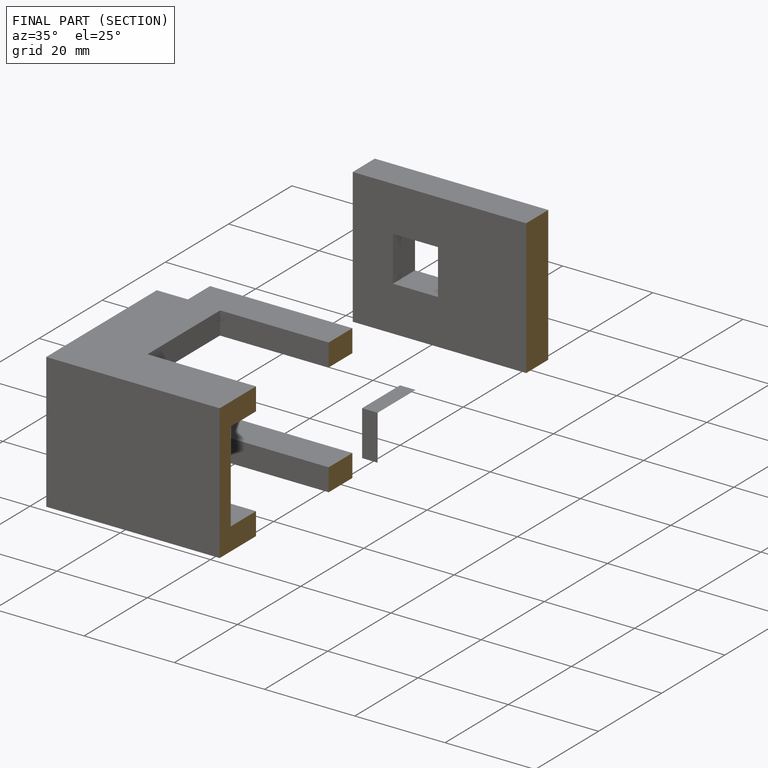
[diagram: finished part — half-section view (interior)]
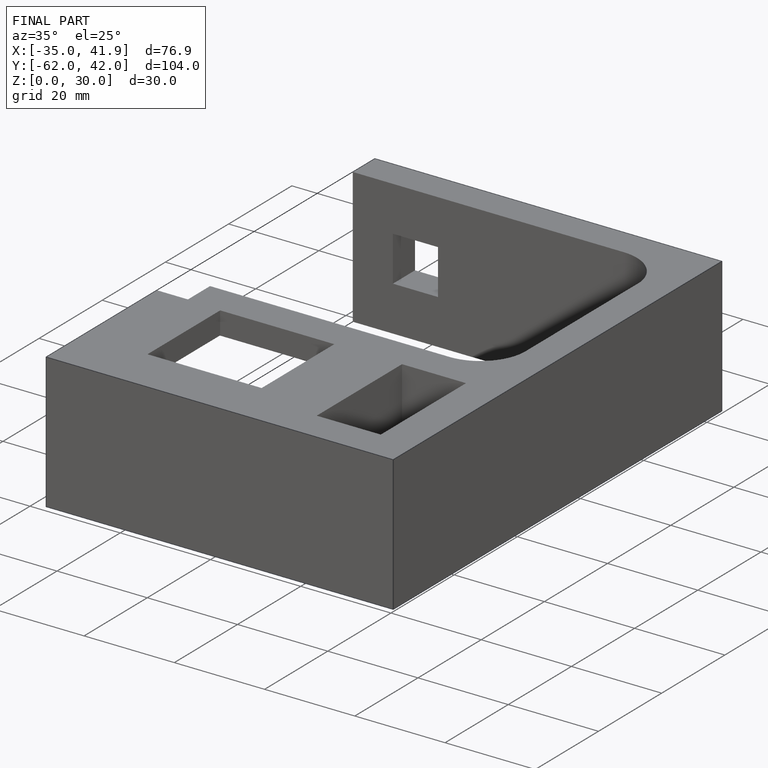
[diagram: finished part — iso view with bounding-box wireframe]
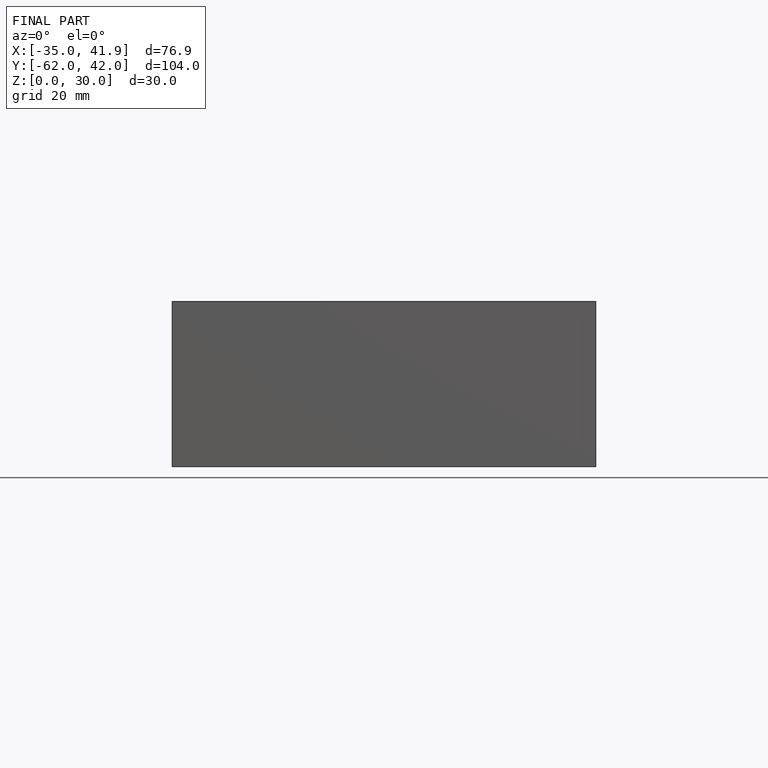
[diagram: finished part — front view with bounding-box wireframe]
